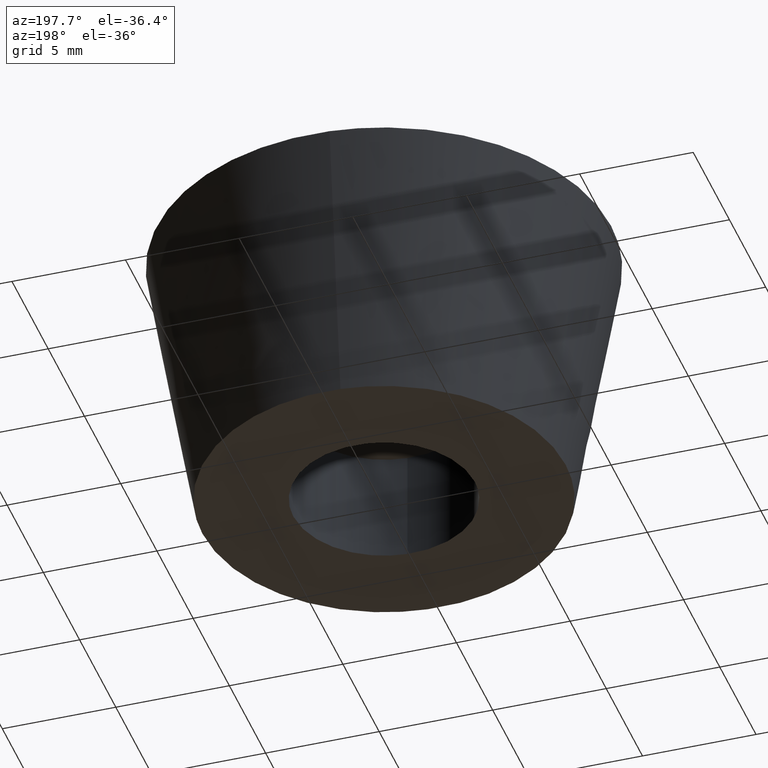
[diagram: clean part render]
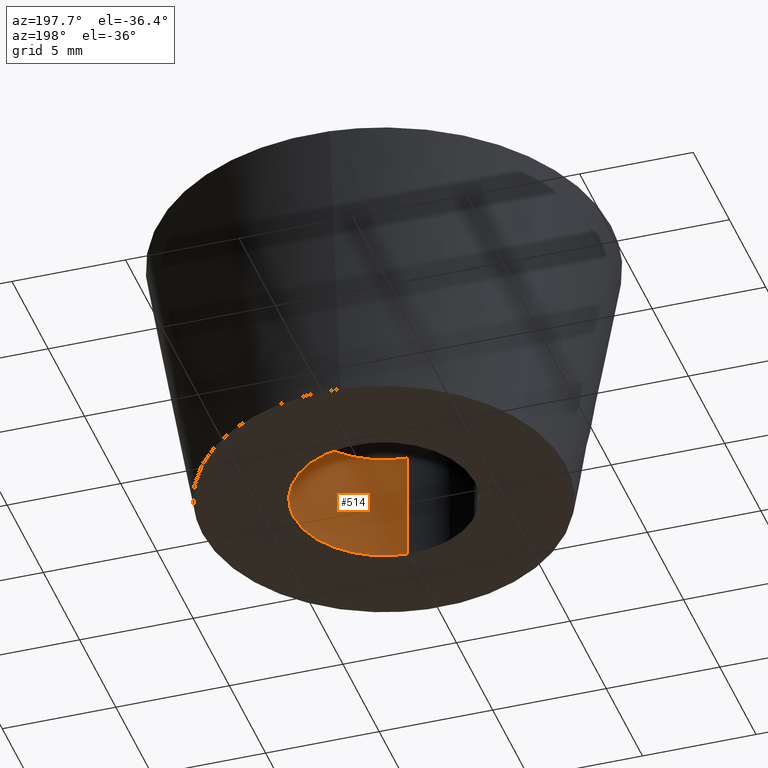
[diagram: same view with one face highlighted and labeled with its STEP entity id]
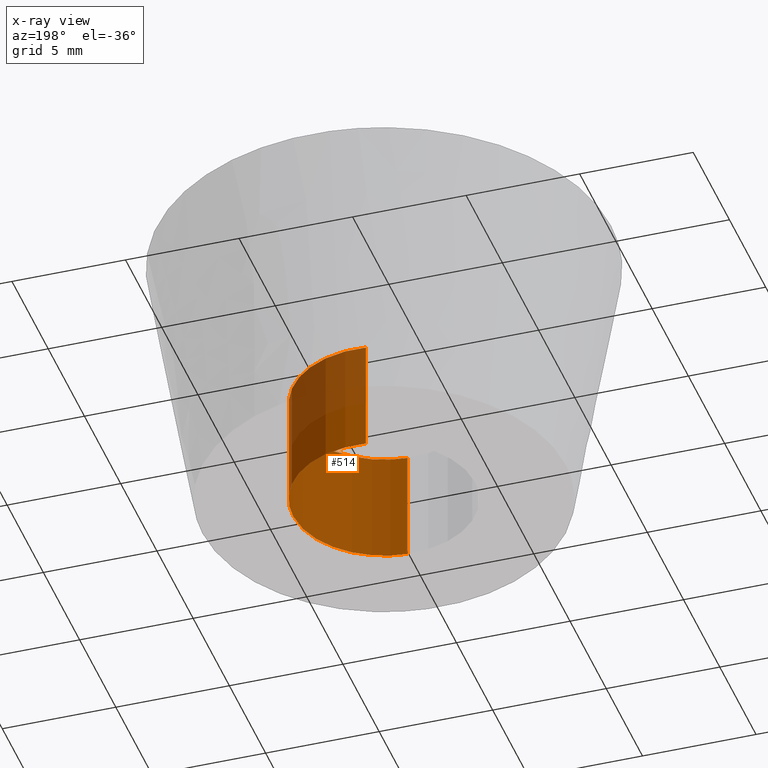
[diagram: x-ray of the same camera — body ghosted, the highlighted face saturated]
A machine part, auxiliary view. The second image highlights one B-rep face of the part: STEP entity #514.
The next image is the same camera in x-ray: the body ghosted, the highlighted face saturated — about 25% of this face is hidden behind the body in this view.
In plain terms, the highlighted face is a freeform B-spline surface patch.
Its self-contained STEP definition (entity closure, byte-faithful):
#412=CARTESIAN_POINT('',(-0.472136938627034,3.972038105454666,5.125000000000002));
#413=CARTESIAN_POINT('',(-0.358458914551911,3.985550461794422,5.125000000000001));
#414=CARTESIAN_POINT('',(-0.244194158139428,3.992539193687467,5.125000000000001));
#415=CARTESIAN_POINT('',(3.748345035548039,4.236733351826894,5.125000000000001));
#416=CARTESIAN_POINT('',(3.992539193687467,0.244194158139428,5.125000000000001));
#417=CARTESIAN_POINT('',(4.236733351826894,-3.748345035548039,5.125000000000001));
#418=CARTESIAN_POINT('',(0.244194158139428,-3.992539193687467,5.125000000000001));
#419=CARTESIAN_POINT('',(-0.472136938627034,3.972038105454666,-0.128125000000000));
#420=CARTESIAN_POINT('',(-0.358458914551911,3.985550461794422,-0.128125000000000));
#421=CARTESIAN_POINT('',(-0.244194158139428,3.992539193687467,-0.128125000000000));
#422=CARTESIAN_POINT('',(3.748345035548039,4.236733351826894,-0.128125000000000));
#423=CARTESIAN_POINT('',(3.992539193687467,0.244194158139428,-0.128125000000000));
#424=CARTESIAN_POINT('',(4.236733351826894,-3.748345035548039,-0.128125000000000));
#425=CARTESIAN_POINT('',(0.244194158139428,-3.992539193687467,-0.128125000000000));
#433=(BOUNDED_SURFACE()B_SPLINE_SURFACE(2,1,((#412,#419),(#413,#420),(#414,#421),(#415,#422),(#416,#423),(#417,#424),(#418,#425)),.UNSPECIFIED.,.F.,.F.,.U.)B_SPLINE_SURFACE_WITH_KNOTS((3,2,2,3),(2,2),(0.0,0.265096679918781,6.892513677888299,13.519930675857820),(0.0,5.253125000000002),.UNSPECIFIED.)GEOMETRIC_REPRESENTATION_ITEM()RATIONAL_B_SPLINE_SURFACE(((0.977505800795127,0.977505800795127),(0.988284271247462,0.988284271247462),(1.0,1.0),(0.707106781186548,0.707106781186548),(1.0,1.0),(0.707106781186548,0.707106781186548),(1.0,1.0)))REPRESENTATION_ITEM('')SURFACE());
#434=CARTESIAN_POINT('',(-0.472129948118010,3.972038936370151,4.401114E-016));
#435=VERTEX_POINT('',#434);
#436=CARTESIAN_POINT('',(4.0,0.0,0.0));
#437=VERTEX_POINT('',#436);
#438=CARTESIAN_POINT('',(-0.472129948118010,3.972038936370151,4.401114E-016));
#439=CARTESIAN_POINT('',(-0.236892946402667,4.0,0.0));
#440=CARTESIAN_POINT('',(0.0,4.0,0.0));
#441=CARTESIAN_POINT('',(4.000000000000000,4.000000000000000,0.0));
#442=CARTESIAN_POINT('',(4.0,0.0,0.0));
#450=(BOUNDED_CURVE()B_SPLINE_CURVE(2,(#438,#439,#440,#441,#442),.UNSPECIFIED.,.F.,.U.)B_SPLINE_CURVE_WITH_KNOTS((3,2,3),(0.229562770949563,0.250000000000000,0.500000000000000),.UNSPECIFIED.)CURVE()GEOMETRIC_REPRESENTATION_ITEM()RATIONAL_B_SPLINE_CURVE((0.956027337171368,0.976056296799159,1.0,0.707106781186548,1.0))REPRESENTATION_ITEM(''));
#451=EDGE_CURVE('',#435,#437,#450,.T.);
#452=ORIENTED_EDGE('',*,*,#451,.T.);
#453=CARTESIAN_POINT('',(0.244192892551057,-3.992539271093766,2.491063E-015));
#454=VERTEX_POINT('',#453);
#455=CARTESIAN_POINT('',(4.0,0.0,0.0));
#456=CARTESIAN_POINT('',(4.000000000000001,-3.762825462623270,0.0));
#457=CARTESIAN_POINT('',(0.244192892551057,-3.992539271093766,2.491063E-015));
#465=(BOUNDED_CURVE()B_SPLINE_CURVE(2,(#455,#456,#457),.UNSPECIFIED.,.F.,.U.)B_SPLINE_CURVE_WITH_KNOTS((3,3),(0.500000000000000,0.739333016937291),.UNSPECIFIED.)CURVE()GEOMETRIC_REPRESENTATION_ITEM()RATIONAL_B_SPLINE_CURVE((1.0,0.719603929203609,0.976072158895718))REPRESENTATION_ITEM(''));
#466=EDGE_CURVE('',#437,#454,#465,.T.);
#467=ORIENTED_EDGE('',*,*,#466,.T.);
#468=CARTESIAN_POINT('',(0.244192908142875,-3.992539270140139,5.0));
#469=VERTEX_POINT('',#468);
#470=CARTESIAN_POINT('',(0.244192908142875,-3.992539270140139,5.0));
#471=CARTESIAN_POINT('',(0.244192892551057,-3.992539271093766,2.491063E-015));
#472=QUASI_UNIFORM_CURVE('',1,(#470,#471),.UNSPECIFIED.,.F.,.U.);
#473=EDGE_CURVE('',#469,#454,#472,.T.);
#474=ORIENTED_EDGE('',*,*,#473,.F.);
#475=CARTESIAN_POINT('',(4.0,0.0,5.0));
#476=VERTEX_POINT('',#475);
#477=CARTESIAN_POINT('',(4.0,0.0,5.0));
#478=CARTESIAN_POINT('',(4.0,-3.762825447901077,5.0));
#479=CARTESIAN_POINT('',(0.244192908142875,-3.992539270140139,5.000000000000001));
#487=(BOUNDED_CURVE()B_SPLINE_CURVE(2,(#477,#478,#479),.UNSPECIFIED.,.F.,.U.)B_SPLINE_CURVE_WITH_KNOTS((3,3),(0.500000000000000,0.739333016263454),.UNSPECIFIED.)CURVE()GEOMETRIC_REPRESENTATION_ITEM()RATIONAL_B_SPLINE_CURVE((1.0,0.719603929993058,0.976072157451557))REPRESENTATION_ITEM(''));
#488=EDGE_CURVE('',#476,#469,#487,.T.);
#489=ORIENTED_EDGE('',*,*,#488,.F.);
#490=CARTESIAN_POINT('',(-0.472130034368349,3.972038926118297,5.0));
#491=VERTEX_POINT('',#490);
#492=CARTESIAN_POINT('',(-0.472130034368349,3.972038926118297,5.0));
#493=CARTESIAN_POINT('',(-0.236892989983728,4.0,5.0));
#494=CARTESIAN_POINT('',(0.0,4.0,5.0));
#495=CARTESIAN_POINT('',(4.000000000000000,4.000000000000000,5.000000000000001));
#496=CARTESIAN_POINT('',(4.0,0.0,5.0));
#504=(BOUNDED_CURVE()B_SPLINE_CURVE(2,(#492,#493,#494,#495,#496),.UNSPECIFIED.,.F.,.U.)B_SPLINE_CURVE_WITH_KNOTS((3,2,3),(0.229562767279762,0.250000000000000,0.500000000000000),.UNSPECIFIED.)CURVE()GEOMETRIC_REPRESENTATION_ITEM()RATIONAL_B_SPLINE_CURVE((0.956027329978387,0.976056292499719,1.0,0.707106781186548,1.0))REPRESENTATION_ITEM(''));
#505=EDGE_CURVE('',#491,#476,#504,.T.);
#506=ORIENTED_EDGE('',*,*,#505,.F.);
#507=CARTESIAN_POINT('',(-0.472130034368349,3.972038926118297,5.0));
#508=CARTESIAN_POINT('',(-0.472129948118010,3.972038936370151,4.401114E-016));
#509=QUASI_UNIFORM_CURVE('',1,(#507,#508),.UNSPECIFIED.,.F.,.U.);
#510=EDGE_CURVE('',#491,#435,#509,.T.);
#511=ORIENTED_EDGE('',*,*,#510,.T.);
#512=EDGE_LOOP('',(#452,#467,#474,#489,#506,#511));
#513=FACE_OUTER_BOUND('',#512,.T.);
#514=ADVANCED_FACE('',(#513),#433,.F.);